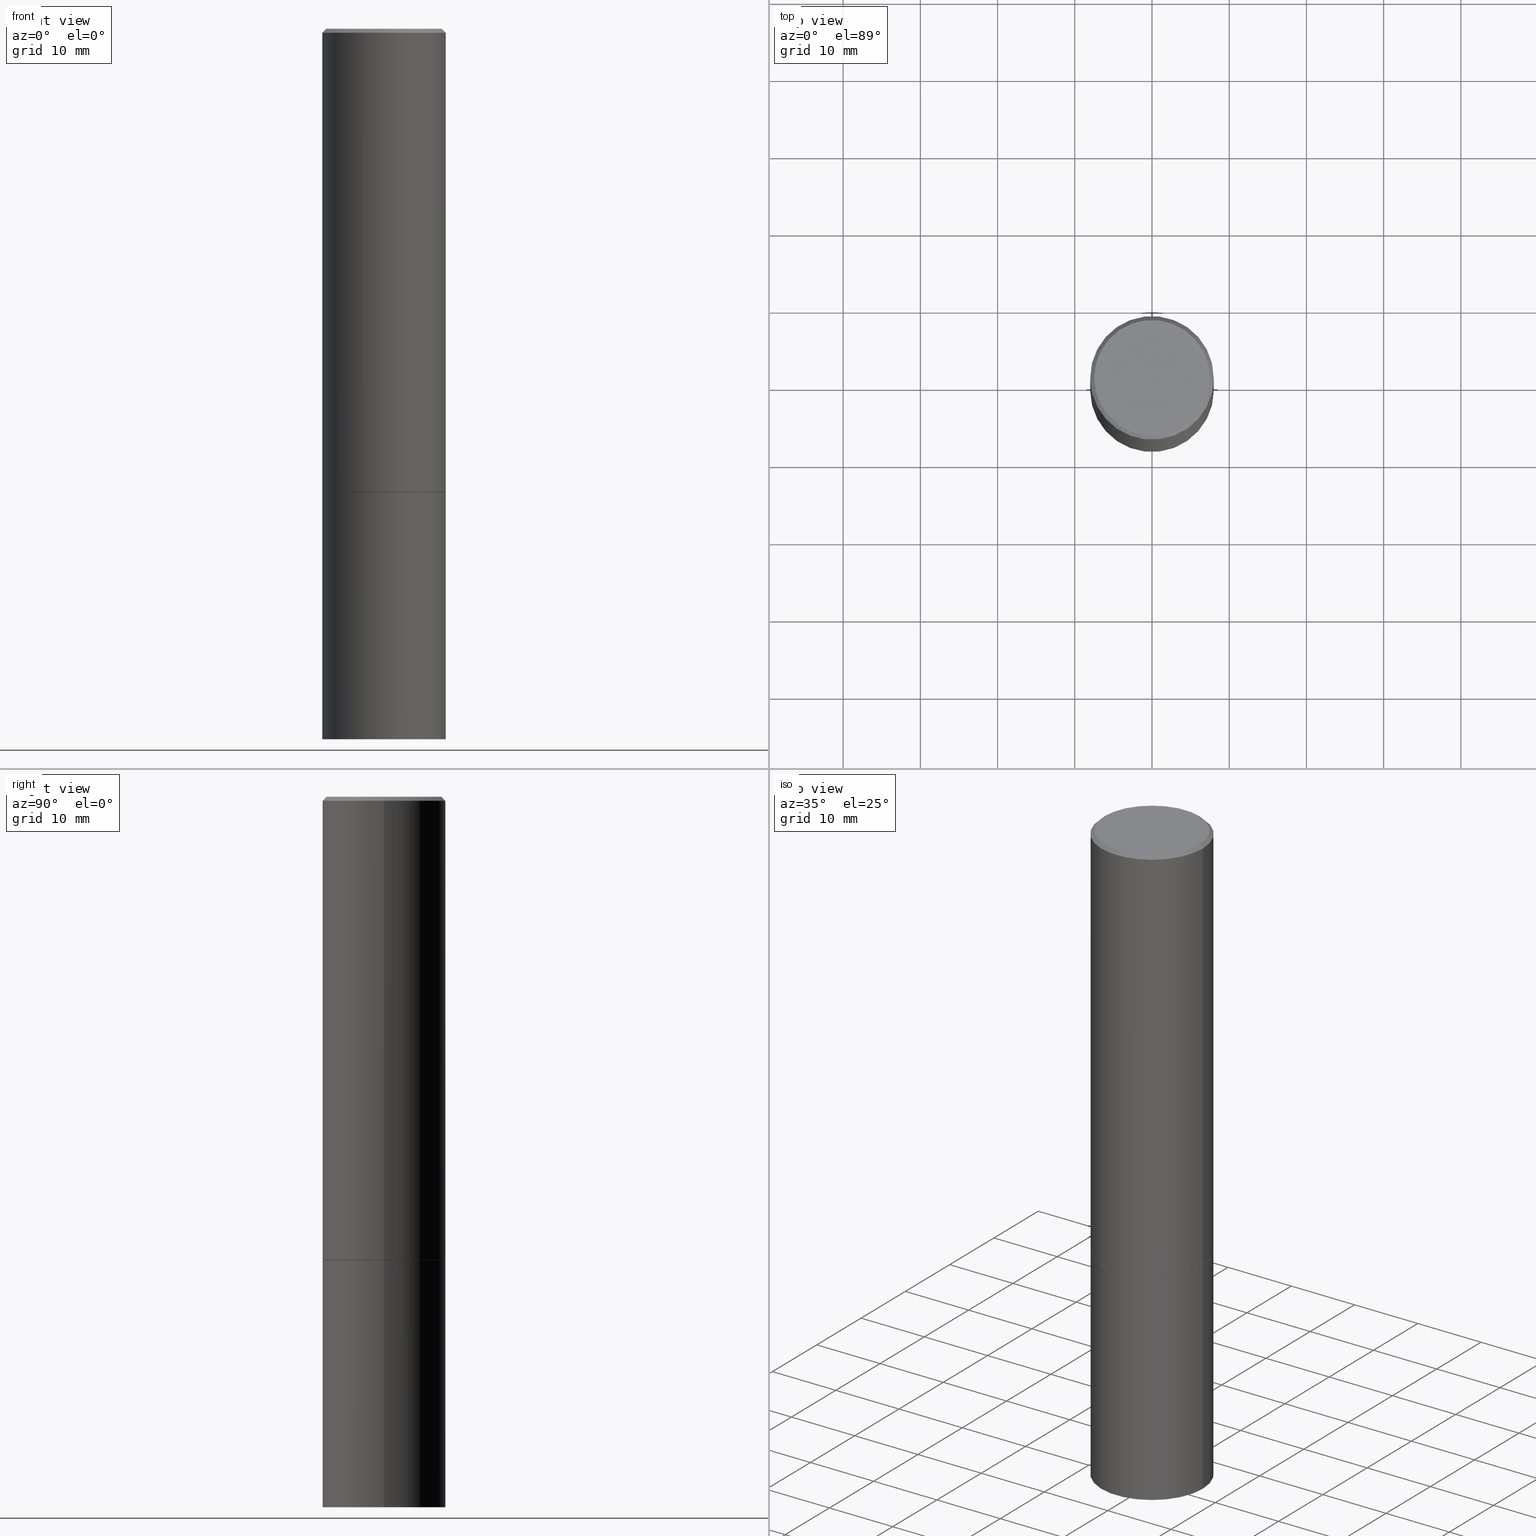
[diagram: canonical four-view strip — front | top / right | iso, engineering-drawing reading convention]
A machine part, canonical four-view strip (front | top / right | iso — engineering-drawing reading convention). The complete STEP part file that produces these views, byte-faithful:
ISO-10303-21;
HEADER;
FILE_DESCRIPTION (( 'STEP AP203' ),
    '1' );
FILE_NAME ('44558.STEP',
    '2024-02-28T06:54:32',
    ( '' ),
    ( '' ),
    'SwSTEP 2.0',
    'SolidWorks 2023',
    '' );
FILE_SCHEMA (( 'CONFIG_CONTROL_DESIGN' ));
ENDSEC;

DATA;
#1 = DIRECTION ( 'NONE',  ( 1.000000000000000000, 0.000000000000000000, 0.000000000000000000 ) ) ;
#2 = AXIS2_PLACEMENT_3D ( 'NONE', #260, #295, #288 ) ;
#3 = APPROVAL_PERSON_ORGANIZATION ( #310, #348, #341 ) ;
#4 = COORDINATED_UNIVERSAL_TIME_OFFSET ( 5, 0, .BEHIND. ) ;
#5 = PERSON_AND_ORGANIZATION ( #206, #213 ) ;
#6 = AXIS2_PLACEMENT_3D ( 'NONE', #166, #251, #305 ) ;
#7 = PRODUCT_DEFINITION ( 'UNKNOWN', '', #239, #257 ) ;
#8 = ORIENTED_EDGE ( 'NONE', *, *, #52, .F. ) ;
#9 = DIRECTION ( 'NONE',  ( 1.000000000000000000, -6.982962677686267499E-15, 4.876053491004739391E-29 ) ) ;
#10 = CYLINDRICAL_SURFACE ( 'NONE', #311, 0.3149499999999998967 ) ;
#11 = DIRECTION ( 'NONE',  ( 1.000000000000000000, -6.982962677686266711E-15, 0.000000000000000000 ) ) ;
#12 = AXIS2_PLACEMENT_3D ( 'NONE', #309, #62, #65 ) ;
#13 = VERTEX_POINT ( 'NONE', #100 ) ;
#14 = ADVANCED_FACE ( 'NONE', ( #76 ), #220, .F. ) ;
#15 = EDGE_LOOP ( 'NONE', ( #278, #319 ) ) ;
#16 = ORIENTED_EDGE ( 'NONE', *, *, #296, .T. ) ;
#17 = CARTESIAN_POINT ( 'NONE',  ( 4.890937612370290675E-31, -6.982962677686316261E-17, -0.02000000000000007327 ) ) ;
#18 = DIRECTION ( 'NONE',  ( 1.000000000000000000, -6.982962677686263555E-15, 0.000000000000000000 ) ) ;
#19 = FACE_OUTER_BOUND ( 'NONE', #365, .T. ) ;
#20 = EDGE_LOOP ( 'NONE', ( #242, #197 ) ) ;
#21 = VERTEX_POINT ( 'NONE', #267 ) ;
#22 = CARTESIAN_POINT ( 'NONE',  ( 0.3139500000000000624, -1.043987835127488191E-14, -2.362200000000000077 ) ) ;
#23 = CIRCLE ( 'NONE', #125, 0.3139500000000000624 ) ;
#24 = DIRECTION ( 'NONE',  ( 1.000000000000000000, -6.982962677686266711E-15, 4.876176775795936353E-29 ) ) ;
#25 = ORIENTED_EDGE ( 'NONE', *, *, #150, .F. ) ;
#26 = PERSON_AND_ORGANIZATION_ROLE ( 'design_owner' ) ;
#27 = EDGE_CURVE ( 'NONE', #186, #118, #210, .T. ) ;
#28 = MANIFOLD_SOLID_BREP ( 'Body-Move/Copy2[2]', #282 ) ;
#29 = CIRCLE ( 'NONE', #200, 0.3149500000000000077 ) ;
#30 = MANIFOLD_SOLID_BREP ( 'Body-Move/Copy2[1]', #340 ) ;
#31 = ORIENTED_EDGE ( 'NONE', *, *, #180, .F. ) ;
#32 = APPROVAL_DATE_TIME ( #66, #348 ) ;
#33 = CC_DESIGN_PERSON_AND_ORGANIZATION_ASSIGNMENT ( #5, #152, ( #239 ) ) ;
#34 = CC_DESIGN_APPROVAL ( #99, ( #239 ) ) ;
#35 = LINE ( 'NONE', #196, #98 ) ;
#36 = COORDINATED_UNIVERSAL_TIME_OFFSET ( 5, 0, .BEHIND. ) ;
#37 = ADVANCED_FACE ( 'NONE', ( #289 ), #63, .T. ) ;
#38 = VECTOR ( 'NONE', #80, 39.37007874015748143 ) ;
#39 = FACE_OUTER_BOUND ( 'NONE', #103, .T. ) ;
#40 = CARTESIAN_POINT ( 'NONE',  ( -1.043851414335219820E-46, 1.490343170380447200E-32, 4.268512490100411279E-18 ) ) ;
#41 = DIRECTION ( 'NONE',  ( -1.000000000000000000, 6.982962677686266711E-15, 0.000000000000000000 ) ) ;
#42 = LINE ( 'NONE', #299, #175 ) ;
#43 = ORIENTED_EDGE ( 'NONE', *, *, #52, .T. ) ;
#44 = DIRECTION ( 'NONE',  ( -2.445468806185136597E-29, 3.491481338843145583E-15, 1.000000000000000000 ) ) ;
#45 = EDGE_CURVE ( 'NONE', #118, #186, #301, .T. ) ;
#46 = DIRECTION ( 'NONE',  ( -2.445468806185136597E-29, 3.491481338843145583E-15, 1.000000000000000000 ) ) ;
#47 = AXIS2_PLACEMENT_3D ( 'NONE', #17, #140, #354 ) ;
#48 = ORIENTED_EDGE ( 'NONE', *, *, #217, .T. ) ;
#49 = DIRECTION ( 'NONE',  ( -2.445468806185136597E-29, 3.491481338843145583E-15, 1.000000000000000000 ) ) ;
#50 = ORIENTED_EDGE ( 'NONE', *, *, #296, .F. ) ;
#51 = CARTESIAN_POINT ( 'NONE',  ( 0.3149500000000000077, -1.044686131395256792E-14, -2.362199999999999633 ) ) ;
#52 = EDGE_CURVE ( 'NONE', #256, #132, #214, .T. ) ;
#53 = CARTESIAN_POINT ( 'NONE',  ( 5.776686413970529753E-29, -8.247577218615279626E-15, -2.362200000000000077 ) ) ;
#54 = ORIENTED_EDGE ( 'NONE', *, *, #169, .T. ) ;
#55 = CIRCLE ( 'NONE', #160, 0.3149500000000000077 ) ;
#56 = APPROVAL_PERSON_ORGANIZATION ( #147, #307, #229 ) ;
#57 = EDGE_LOOP ( 'NONE', ( #218, #143, #264, #48 ) ) ;
#58 = LINE ( 'NONE', #116, #255 ) ;
#59 = DATE_TIME_ROLE ( 'creation_date' ) ;
#60 = DIRECTION ( 'NONE',  ( 1.000000000000000000, -6.982962677686263555E-15, 0.000000000000000000 ) ) ;
#61 = AXIS2_PLACEMENT_3D ( 'NONE', #105, #155, #163 ) ;
#62 = DIRECTION ( 'NONE',  ( -2.445468806185136597E-29, 3.491481338843145583E-15, 1.000000000000000000 ) ) ;
#63 = CONICAL_SURFACE ( 'NONE', #47, 0.3149499999999997302, 0.7853981633974471688 ) ;
#64 = PRODUCT ( '44558', '44558', '', ( #225 ) ) ;
#65 = DIRECTION ( 'NONE',  ( 1.000000000000000000, -6.982962677686263555E-15, 0.000000000000000000 ) ) ;
#66 = DATE_AND_TIME ( #96, #364 ) ;
#67 = CARTESIAN_POINT ( 'NONE',  ( 2.199284095337347063E-15, 0.3149499999999917366, -2.362200000000000966 ) ) ;
#68 = ADVANCED_BREP_SHAPE_REPRESENTATION ( '44558', ( #30, #28, #194 ), #161 ) ;
#69 = VERTEX_POINT ( 'NONE', #158 ) ;
#70 = ADVANCED_FACE ( 'NONE', ( #39 ), #300, .T. ) ;
#71 = CARTESIAN_POINT ( 'NONE',  ( -1.043851414335219820E-46, 1.490343170380447200E-32, 4.268512490100411279E-18 ) ) ;
#72 = DIRECTION ( 'NONE',  ( -1.000000000000000000, 6.982962677686265922E-15, -4.876176775795935793E-29 ) ) ;
#73 = DIRECTION ( 'NONE',  ( -2.445468806185136597E-29, 3.491481338843145583E-15, 1.000000000000000000 ) ) ;
#74 = ORIENTED_EDGE ( 'NONE', *, *, #343, .T. ) ;
#75 = DIRECTION ( 'NONE',  ( 1.000000000000000000, -6.982962677686266711E-15, 0.000000000000000000 ) ) ;
#76 = FACE_OUTER_BOUND ( 'NONE', #261, .T. ) ;
#77 = CARTESIAN_POINT ( 'NONE',  ( 0.000000000000000000, 0.000000000000000000, 0.000000000000000000 ) ) ;
#78 = ORIENTED_EDGE ( 'NONE', *, *, #27, .T. ) ;
#79 = CC_DESIGN_PERSON_AND_ORGANIZATION_ASSIGNMENT ( #303, #26, ( #64 ) ) ;
#80 = DIRECTION ( 'NONE',  ( -0.7071067811864026886, 7.493145998869830357E-15, 0.7071067811866923458 ) ) ;
#81 = APPLICATION_CONTEXT ( 'configuration controlled 3d designs of mechanical parts and assemblies' ) ;
#82 = DIRECTION ( 'NONE',  ( 1.000000000000000000, -6.982962677686265133E-15, 0.000000000000000000 ) ) ;
#83 = DIRECTION ( 'NONE',  ( 0.7071067811865466846, -7.319954787623252890E-15, -0.7071067811865483499 ) ) ;
#84 = EDGE_CURVE ( 'NONE', #136, #13, #108, .T. ) ;
#85 = FACE_OUTER_BOUND ( 'NONE', #20, .T. ) ;
#86 = APPROVAL_STATUS ( 'not_yet_approved' ) ;
#87 = CARTESIAN_POINT ( 'NONE',  ( 5.774240945164344150E-29, -8.244085737276433464E-15, -2.361199999999999743 ) ) ;
#88 = CIRCLE ( 'NONE', #349, 0.3139500000000000624 ) ;
#89 = EDGE_CURVE ( 'NONE', #69, #13, #58, .T. ) ;
#90 = CARTESIAN_POINT ( 'NONE',  ( 0.3149499999999998967, -2.199284095337288688E-15, 1.535751875536929289E-29 ) ) ;
#91 = DATE_AND_TIME ( #209, #153 ) ;
#92 = PERSON_AND_ORGANIZATION_ROLE ( 'design_supplier' ) ;
#93 = ADVANCED_FACE ( 'NONE', ( #85 ), #203, .F. ) ;
#94 = VECTOR ( 'NONE', #195, 39.37007874015748143 ) ;
#95 = FACE_OUTER_BOUND ( 'NONE', #15, .T. ) ;
#96 = CALENDAR_DATE ( 2024, 28, 2 ) ;
#97 = ORIENTED_EDGE ( 'NONE', *, *, #235, .T. ) ;
#98 = VECTOR ( 'NONE', #297, 39.37007874015748143 ) ;
#99 = APPROVAL ( #281, 'UNSPECIFIED' ) ;
#100 = CARTESIAN_POINT ( 'NONE',  ( -0.3149500000000000077, -8.209006967676139823E-15, -2.362199999999999633 ) ) ;
#101 = CARTESIAN_POINT ( 'NONE',  ( 0.000000000000000000, 0.000000000000000000, 0.000000000000000000 ) ) ;
#102 = CC_DESIGN_PERSON_AND_ORGANIZATION_ASSIGNMENT ( #151, #92, ( #239 ) ) ;
#103 = EDGE_LOOP ( 'NONE', ( #171, #258 ) ) ;
#104 = CARTESIAN_POINT ( 'NONE',  ( 5.776686413970529753E-29, -8.247577218615279626E-15, -2.362200000000000077 ) ) ;
#105 = CARTESIAN_POINT ( 'NONE',  ( 2.059624841783562091E-15, 0.2949499999999997124, -1.027678164646734579E-15 ) ) ;
#106 = EDGE_CURVE ( 'NONE', #186, #21, #298, .T. ) ;
#107 = APPLICATION_CONTEXT ( 'configuration controlled 3d designs of mechanical parts and assemblies' ) ;
#108 = CIRCLE ( 'NONE', #236, 0.3149500000000000077 ) ;
#109 = DIRECTION ( 'NONE',  ( 1.000000000000000000, -6.982962677686267499E-15, 4.876053491004739391E-29 ) ) ;
#110 = DIRECTION ( 'NONE',  ( -2.445468806185136597E-29, 3.491481338843145583E-15, 1.000000000000000000 ) ) ;
#111 = DIRECTION ( 'NONE',  ( 1.000000000000000000, -6.982962677686266711E-15, 4.876176775795936353E-29 ) ) ;
#112 = EDGE_LOOP ( 'NONE', ( #31, #97, #273, #352 ) ) ;
#113 = ORIENTED_EDGE ( 'NONE', *, *, #89, .F. ) ;
#114 = EDGE_CURVE ( 'NONE', #224, #21, #123, .T. ) ;
#115 = CARTESIAN_POINT ( 'NONE',  ( -0.2949499999999997124, 2.094539655171993740E-15, 4.268512490085885145E-18 ) ) ;
#116 = CARTESIAN_POINT ( 'NONE',  ( -0.3149500000000000077, 2.237854346276435590E-15, -1.549218606675782676E-29 ) ) ;
#117 = ORIENTED_EDGE ( 'NONE', *, *, #114, .F. ) ;
#118 = VERTEX_POINT ( 'NONE', #115 ) ;
#119 = PERSON_AND_ORGANIZATION_ROLE ( 'creator' ) ;
#120 = ORIENTED_EDGE ( 'NONE', *, *, #180, .T. ) ;
#121 = CC_DESIGN_DATE_AND_TIME_ASSIGNMENT ( #306, #59, ( #7 ) ) ;
#122 = CARTESIAN_POINT ( 'NONE',  ( 0.000000000000000000, 0.000000000000000000, 0.000000000000000000 ) ) ;
#123 = LINE ( 'NONE', #90, #94 ) ;
#124 = PERSON_AND_ORGANIZATION_ROLE ( 'classification_officer' ) ;
#125 = AXIS2_PLACEMENT_3D ( 'NONE', #192, #49, #249 ) ;
#126 = APPROVAL_STATUS ( 'not_yet_approved' ) ;
#127 = EDGE_CURVE ( 'NONE', #183, #136, #35, .T. ) ;
#128 = CIRCLE ( 'NONE', #231, 0.3149500000000000077 ) ;
#129 = LOCAL_TIME ( 1, 54, 32.00000000000000000, #227 ) ;
#130 = COORDINATED_UNIVERSAL_TIME_OFFSET ( 5, 0, .BEHIND. ) ;
#131 = ORIENTED_EDGE ( 'NONE', *, *, #27, .F. ) ;
#132 = VERTEX_POINT ( 'NONE', #326 ) ;
#133 = DIRECTION ( 'NONE',  ( 2.438088387897960049E-29, -3.491481338843145188E-15, -1.000000000000000000 ) ) ;
#134 = CARTESIAN_POINT ( 'NONE',  ( 0.3149500000000000077, -1.044336983261372333E-14, -2.361199999999999743 ) ) ;
#135 = CONICAL_SURFACE ( 'NONE', #204, 0.3139500000000000624, 0.7853981633972434429 ) ;
#136 = VERTEX_POINT ( 'NONE', #51 ) ;
#137 = ADVANCED_FACE ( 'NONE', ( #359 ), #164, .T. ) ;
#138 = ORIENTED_EDGE ( 'NONE', *, *, #84, .F. ) ;
#139 = APPLICATION_PROTOCOL_DEFINITION ( 'international standard', 'config_control_design', 1994, #107 ) ;
#140 = DIRECTION ( 'NONE',  ( 2.445468806185136597E-29, -3.491481338843145583E-15, -1.000000000000000000 ) ) ;
#141 = DIRECTION ( 'NONE',  ( 2.445468806185136597E-29, -3.491481338843145583E-15, -1.000000000000000000 ) ) ;
#142 = DIRECTION ( 'NONE',  ( -2.445468806185136597E-29, 3.491481338843145583E-15, 1.000000000000000000 ) ) ;
#143 = ORIENTED_EDGE ( 'NONE', *, *, #45, .F. ) ;
#144 = CIRCLE ( 'NONE', #331, 0.3149499999999997302 ) ;
#145 =( CONVERSION_BASED_UNIT ( 'INCH', #188 ) LENGTH_UNIT ( ) NAMED_UNIT ( #232 ) );
#146 = APPLICATION_PROTOCOL_DEFINITION ( 'international standard', 'config_control_design', 1994, #81 ) ;
#147 = PERSON_AND_ORGANIZATION ( #206, #213 ) ;
#148 = PERSON_AND_ORGANIZATION ( #206, #213 ) ;
#149 = AXIS2_PLACEMENT_3D ( 'NONE', #353, #141, #41 ) ;
#150 = EDGE_CURVE ( 'NONE', #118, #132, #216, .T. ) ;
#151 = PERSON_AND_ORGANIZATION ( #206, #213 ) ;
#152 = PERSON_AND_ORGANIZATION_ROLE ( 'creator' ) ;
#153 = LOCAL_TIME ( 1, 54, 32.00000000000000000, #130 ) ;
#154 = ADVANCED_FACE ( 'NONE', ( #19 ), #135, .T. ) ;
#155 = DIRECTION ( 'NONE',  ( 2.438088387897960049E-29, -3.491481338843145188E-15, -1.000000000000000000 ) ) ;
#156 = ORIENTED_EDGE ( 'NONE', *, *, #240, .T. ) ;
#157 = FACE_OUTER_BOUND ( 'NONE', #57, .T. ) ;
#158 = CARTESIAN_POINT ( 'NONE',  ( -0.3149500000000000077, -8.209006967676139823E-15, -3.621999999999999886 ) ) ;
#159 = DIRECTION ( 'NONE',  ( 1.000000000000000000, -6.982962677686265133E-15, 0.000000000000000000 ) ) ;
#160 = AXIS2_PLACEMENT_3D ( 'NONE', #350, #44, #18 ) ;
#161 =( GEOMETRIC_REPRESENTATION_CONTEXT ( 3 ) GLOBAL_UNCERTAINTY_ASSIGNED_CONTEXT ( ( #178 ) ) GLOBAL_UNIT_ASSIGNED_CONTEXT ( ( #145, #316, #292 ) ) REPRESENTATION_CONTEXT ( 'NONE', 'WORKASPACE' ) );
#162 = ORIENTED_EDGE ( 'NONE', *, *, #208, .F. ) ;
#163 = DIRECTION ( 'NONE',  ( -1.000000000000000000, 6.982962677686265922E-15, -4.876176775795935793E-29 ) ) ;
#164 = CYLINDRICAL_SURFACE ( 'NONE', #356, 0.3149500000000000077 ) ;
#165 = EDGE_LOOP ( 'NONE', ( #276, #347, #138, #363 ) ) ;
#166 = CARTESIAN_POINT ( 'NONE',  ( 5.776686413970529753E-29, -8.247577218615278049E-15, -2.362199999999999633 ) ) ;
#167 = CARTESIAN_POINT ( 'NONE',  ( 0.3149500000000000077, -1.484542950462716186E-14, -3.621999999999999886 ) ) ;
#168 = AXIS2_PLACEMENT_3D ( 'NONE', #40, #287, #9 ) ;
#169 = EDGE_CURVE ( 'NONE', #332, #302, #88, .T. ) ;
#170 = ORIENTED_EDGE ( 'NONE', *, *, #208, .T. ) ;
#171 = ORIENTED_EDGE ( 'NONE', *, *, #266, .F. ) ;
#172 = CARTESIAN_POINT ( 'NONE',  ( 5.776686413970529753E-29, -8.247577218615278049E-15, -2.362199999999999633 ) ) ;
#173 = CARTESIAN_POINT ( 'NONE',  ( -0.3149500000000000077, -1.919103335750211213E-15, -2.361199999999999743 ) ) ;
#174 = ADVANCED_FACE ( 'NONE', ( #358 ), #243, .T. ) ;
#175 = VECTOR ( 'NONE', #263, 39.37007874015748143 ) ;
#176 = PERSON_AND_ORGANIZATION ( #206, #213 ) ;
#177 = CYLINDRICAL_SURFACE ( 'NONE', #279, 0.3149499999999998967 ) ;
#178 = UNCERTAINTY_MEASURE_WITH_UNIT (LENGTH_MEASURE( 1.000000000000000082E-05 ), #145, 'distance_accuracy_value', 'NONE');
#179 = CIRCLE ( 'NONE', #12, 0.3149500000000000077 ) ;
#180 = EDGE_CURVE ( 'NONE', #302, #256, #271, .T. ) ;
#181 = APPROVAL_DATE_TIME ( #207, #99 ) ;
#182 = CC_DESIGN_PERSON_AND_ORGANIZATION_ASSIGNMENT ( #234, #124, ( #294 ) ) ;
#183 = VERTEX_POINT ( 'NONE', #167 ) ;
#184 = VECTOR ( 'NONE', #324, 39.37007874015748143 ) ;
#185 = CC_DESIGN_SECURITY_CLASSIFICATION ( #294, ( #239 ) ) ;
#186 = VERTEX_POINT ( 'NONE', #199 ) ;
#187 = CARTESIAN_POINT ( 'NONE',  ( -0.3149499999999998967, 2.237854346276434801E-15, -1.549218606675782116E-29 ) ) ;
#188 = LENGTH_MEASURE_WITH_UNIT ( LENGTH_MEASURE( 0.02539999999999999897 ), #325 );
#189 = CARTESIAN_POINT ( 'NONE',  ( 4.890937612370290675E-31, -6.982962677686316261E-17, -0.02000000000000007327 ) ) ;
#190 = EDGE_LOOP ( 'NONE', ( #131, #321, #170, #25 ) ) ;
#191 = DIRECTION ( 'NONE',  ( 1.000000000000000000, -6.982962677686265922E-15, 4.876176775795935232E-29 ) ) ;
#192 = CARTESIAN_POINT ( 'NONE',  ( 5.776686413970529753E-29, -8.247577218615279626E-15, -2.362200000000000077 ) ) ;
#193 = AXIS2_PLACEMENT_3D ( 'NONE', #290, #46, #75 ) ;
#194 = AXIS2_PLACEMENT_3D ( 'NONE', #274, #202, #1 ) ;
#195 = DIRECTION ( 'NONE',  ( -2.445468806185136877E-29, 3.491481338843145188E-15, 1.000000000000000000 ) ) ;
#196 = CARTESIAN_POINT ( 'NONE',  ( 0.3149500000000000077, -2.199284095337289871E-15, 1.535751875536930130E-29 ) ) ;
#197 = ORIENTED_EDGE ( 'NONE', *, *, #235, .F. ) ;
#198 = DIRECTION ( 'NONE',  ( -2.445468806185136877E-29, 3.491481338843145188E-15, 1.000000000000000000 ) ) ;
#199 = CARTESIAN_POINT ( 'NONE',  ( 0.2949499999999997124, -2.127023677808858103E-15, 4.268512490115050658E-18 ) ) ;
#200 = AXIS2_PLACEMENT_3D ( 'NONE', #87, #361, #362 ) ;
#201 = CONICAL_SURFACE ( 'NONE', #149, 0.3149499999999997302, 0.7853981633974471688 ) ;
#202 = DIRECTION ( 'NONE',  ( 0.000000000000000000, 0.000000000000000000, 1.000000000000000000 ) ) ;
#203 = PLANE ( 'NONE',  #6 ) ;
#204 = AXIS2_PLACEMENT_3D ( 'NONE', #53, #265, #328 ) ;
#205 = DIRECTION ( 'NONE',  ( 1.000000000000000000, -6.982962677686265922E-15, 4.876176775795935232E-29 ) ) ;
#206 = PERSON ( 'UNSPECIFIED', 'UNSPECIFIED', 'UNSPECIFIED', ('UNSPECIFIED'), ('UNSPECIFIED'), ('UNSPECIFIED') ) ;
#207 = DATE_AND_TIME ( #284, #323 ) ;
#208 = EDGE_CURVE ( 'NONE', #21, #132, #286, .T. ) ;
#209 = CALENDAR_DATE ( 2024, 28, 2 ) ;
#210 = CIRCLE ( 'NONE', #168, 0.2949499999999997124 ) ;
#211 = PLANE ( 'NONE',  #314 ) ;
#212 = EDGE_CURVE ( 'NONE', #332, #224, #42, .T. ) ;
#213 = ORGANIZATION ( 'UNSPECIFIED', 'UNSPECIFIED', '' ) ;
#214 = LINE ( 'NONE', #187, #184 ) ;
#215 = CARTESIAN_POINT ( 'NONE',  ( 5.776686413970529753E-29, -8.247577218615279626E-15, -2.362200000000000077 ) ) ;
#216 = LINE ( 'NONE', #246, #293 ) ;
#217 = EDGE_CURVE ( 'NONE', #132, #21, #144, .T. ) ;
#218 = ORIENTED_EDGE ( 'NONE', *, *, #106, .F. ) ;
#219 = AXIS2_PLACEMENT_3D ( 'NONE', #71, #238, #109 ) ;
#220 = PLANE ( 'NONE',  #61 ) ;
#221 = FACE_OUTER_BOUND ( 'NONE', #317, .T. ) ;
#222 = CARTESIAN_POINT ( 'NONE',  ( -0.3139500000000000624, -6.016828299696443861E-15, -2.362200000000000077 ) ) ;
#223 = PRODUCT_RELATED_PRODUCT_CATEGORY ( 'detail', '', ( #64 ) ) ;
#224 = VERTEX_POINT ( 'NONE', #134 ) ;
#225 = MECHANICAL_CONTEXT ( 'NONE', #107, 'mechanical' ) ;
#226 = DIRECTION ( 'NONE',  ( -2.445468806185136597E-29, 3.491481338843145583E-15, 1.000000000000000000 ) ) ;
#227 = COORDINATED_UNIVERSAL_TIME_OFFSET ( 5, 0, .BEHIND. ) ;
#228 = ORIENTED_EDGE ( 'NONE', *, *, #212, .F. ) ;
#229 = APPROVAL_ROLE ( '' ) ;
#230 = DIRECTION ( 'NONE',  ( -2.445468806185136597E-29, 3.491481338843145583E-15, 1.000000000000000000 ) ) ;
#231 = AXIS2_PLACEMENT_3D ( 'NONE', #342, #230, #60 ) ;
#232 = DIMENSIONAL_EXPONENTS ( 1.000000000000000000, 0.000000000000000000, 0.000000000000000000, 0.000000000000000000, 0.000000000000000000, 0.000000000000000000, 0.000000000000000000 ) ;
#233 = EDGE_CURVE ( 'NONE', #13, #136, #262, .T. ) ;
#234 = PERSON_AND_ORGANIZATION ( #206, #213 ) ;
#235 = EDGE_CURVE ( 'NONE', #302, #332, #23, .T. ) ;
#236 = AXIS2_PLACEMENT_3D ( 'NONE', #172, #226, #330 ) ;
#237 = EDGE_LOOP ( 'NONE', ( #113, #74, #241, #315 ) ) ;
#238 = DIRECTION ( 'NONE',  ( -2.445468806185136597E-29, 3.491481338843145583E-15, 1.000000000000000000 ) ) ;
#239 = PRODUCT_DEFINITION_FORMATION_WITH_SPECIFIED_SOURCE ( 'ANY', '', #64, .NOT_KNOWN. ) ;
#240 = EDGE_CURVE ( 'NONE', #256, #224, #29, .T. ) ;
#241 = ORIENTED_EDGE ( 'NONE', *, *, #127, .T. ) ;
#242 = ORIENTED_EDGE ( 'NONE', *, *, #169, .F. ) ;
#243 = CYLINDRICAL_SURFACE ( 'NONE', #345, 0.3149500000000000077 ) ;
#244 = EDGE_LOOP ( 'NONE', ( #16, #43, #162, #117 ) ) ;
#245 = COORDINATED_UNIVERSAL_TIME_OFFSET ( 5, 0, .BEHIND. ) ;
#246 = CARTESIAN_POINT ( 'NONE',  ( -0.3149499999999997302, 2.129454468560424601E-15, -0.02000000000000007327 ) ) ;
#247 = ORIENTED_EDGE ( 'NONE', *, *, #114, .T. ) ;
#248 = CALENDAR_DATE ( 2024, 28, 2 ) ;
#249 = DIRECTION ( 'NONE',  ( 1.000000000000000000, -6.982962677686265133E-15, 0.000000000000000000 ) ) ;
#250 = DIRECTION ( 'NONE',  ( -1.000000000000000000, 6.982962677686265922E-15, -4.876176775795935793E-29 ) ) ;
#251 = DIRECTION ( 'NONE',  ( -2.438088387897960049E-29, 3.491481338843145188E-15, 1.000000000000000000 ) ) ;
#252 = AXIS2_PLACEMENT_3D ( 'NONE', #215, #110, #159 ) ;
#253 = APPROVAL_PERSON_ORGANIZATION ( #176, #99, #312 ) ;
#254 = DATE_TIME_ROLE ( 'classification_date' ) ;
#255 = VECTOR ( 'NONE', #198, 39.37007874015748143 ) ;
#256 = VERTEX_POINT ( 'NONE', #173 ) ;
#257 = DESIGN_CONTEXT ( 'detailed design', #81, 'design' ) ;
#258 = ORIENTED_EDGE ( 'NONE', *, *, #343, .F. ) ;
#259 = CC_DESIGN_PERSON_AND_ORGANIZATION_ASSIGNMENT ( #148, #119, ( #7 ) ) ;
#260 = CARTESIAN_POINT ( 'NONE',  ( 4.890937612370290675E-31, -6.982962677686316261E-17, -0.02000000000000007327 ) ) ;
#261 = EDGE_LOOP ( 'NONE', ( #338, #78 ) ) ;
#262 = CIRCLE ( 'NONE', #193, 0.3149500000000000077 ) ;
#263 = DIRECTION ( 'NONE',  ( 0.7071067811864026886, -2.468850131080739687E-15, 0.7071067811866923458 ) ) ;
#264 = ORIENTED_EDGE ( 'NONE', *, *, #150, .T. ) ;
#265 = DIRECTION ( 'NONE',  ( -2.445468806185136597E-29, 3.491481338843145583E-15, 1.000000000000000000 ) ) ;
#266 = EDGE_CURVE ( 'NONE', #183, #69, #128, .T. ) ;
#267 = CARTESIAN_POINT ( 'NONE',  ( 0.3149499999999997302, -2.230543471175005478E-15, -0.02000000000000007327 ) ) ;
#268 = DIRECTION ( 'NONE',  ( -2.445468806185136597E-29, 3.491481338843145583E-15, 1.000000000000000000 ) ) ;
#269 = DIRECTION ( 'NONE',  ( -2.445468806185136597E-29, 3.491481338843145583E-15, 1.000000000000000000 ) ) ;
#270 = CARTESIAN_POINT ( 'NONE',  ( 2.199284095337378223E-15, 0.3149499999999873512, -3.622000000000000774 ) ) ;
#271 = LINE ( 'NONE', #222, #38 ) ;
#272 = AXIS2_PLACEMENT_3D ( 'NONE', #270, #335, #250 ) ;
#273 = ORIENTED_EDGE ( 'NONE', *, *, #212, .T. ) ;
#274 = CARTESIAN_POINT ( 'NONE',  ( 0.000000000000000000, 0.000000000000000000, 0.000000000000000000 ) ) ;
#275 = ADVANCED_FACE ( 'NONE', ( #366 ), #177, .T. ) ;
#276 = ORIENTED_EDGE ( 'NONE', *, *, #266, .T. ) ;
#277 = APPROVAL_DATE_TIME ( #334, #307 ) ;
#278 = ORIENTED_EDGE ( 'NONE', *, *, #84, .T. ) ;
#279 = AXIS2_PLACEMENT_3D ( 'NONE', #122, #339, #205 ) ;
#280 = LOCAL_TIME ( 1, 54, 32.00000000000000000, #245 ) ;
#281 = APPROVAL_STATUS ( 'not_yet_approved' ) ;
#282 = CLOSED_SHELL ( 'NONE', ( #154, #275, #37, #360, #337, #329, #93, #14 ) ) ;
#283 = CC_DESIGN_APPROVAL ( #348, ( #294 ) ) ;
#284 = CALENDAR_DATE ( 2024, 28, 2 ) ;
#285 = SECURITY_CLASSIFICATION_LEVEL ( 'unclassified' ) ;
#286 = CIRCLE ( 'NONE', #2, 0.3149499999999997302 ) ;
#287 = DIRECTION ( 'NONE',  ( -2.445468806185136597E-29, 3.491481338843145583E-15, 1.000000000000000000 ) ) ;
#288 = DIRECTION ( 'NONE',  ( 1.000000000000000000, -6.982962677686266711E-15, 0.000000000000000000 ) ) ;
#289 = FACE_OUTER_BOUND ( 'NONE', #190, .T. ) ;
#290 = CARTESIAN_POINT ( 'NONE',  ( 5.776686413970529753E-29, -8.247577218615278049E-15, -2.362199999999999633 ) ) ;
#291 = ORIENTED_EDGE ( 'NONE', *, *, #217, .F. ) ;
#292 =( NAMED_UNIT ( * ) SI_UNIT ( $, .STERADIAN. ) SOLID_ANGLE_UNIT ( ) );
#293 = VECTOR ( 'NONE', #318, 39.37007874015748143 ) ;
#294 = SECURITY_CLASSIFICATION ( '', '', #285 ) ;
#295 = DIRECTION ( 'NONE',  ( -2.445468806185136597E-29, 3.491481338843145583E-15, 1.000000000000000000 ) ) ;
#296 = EDGE_CURVE ( 'NONE', #224, #256, #179, .T. ) ;
#297 = DIRECTION ( 'NONE',  ( -2.445468806185136877E-29, 3.491481338843145188E-15, 1.000000000000000000 ) ) ;
#298 = LINE ( 'NONE', #333, #308 ) ;
#299 = CARTESIAN_POINT ( 'NONE',  ( 0.3139500000000000624, -1.043987835127488191E-14, -2.362200000000000077 ) ) ;
#300 = PLANE ( 'NONE',  #272 ) ;
#301 = CIRCLE ( 'NONE', #219, 0.2949499999999997124 ) ;
#302 = VERTEX_POINT ( 'NONE', #313 ) ;
#303 = PERSON_AND_ORGANIZATION ( #206, #213 ) ;
#304 = ADVANCED_FACE ( 'NONE', ( #95 ), #211, .F. ) ;
#305 = DIRECTION ( 'NONE',  ( 1.000000000000000000, -6.982962677686265922E-15, 4.876176775795935793E-29 ) ) ;
#306 = DATE_AND_TIME ( #336, #129 ) ;
#307 = APPROVAL ( #86, 'UNSPECIFIED' ) ;
#308 = VECTOR ( 'NONE', #83, 39.37007874015748143 ) ;
#309 = CARTESIAN_POINT ( 'NONE',  ( 5.774240945164344150E-29, -8.244085737276433464E-15, -2.361199999999999743 ) ) ;
#310 = PERSON_AND_ORGANIZATION ( #206, #213 ) ;
#311 = AXIS2_PLACEMENT_3D ( 'NONE', #77, #268, #191 ) ;
#312 = APPROVAL_ROLE ( '' ) ;
#313 = CARTESIAN_POINT ( 'NONE',  ( -0.3139500000000000624, -6.011529845348221459E-15, -2.362200000000000077 ) ) ;
#314 = AXIS2_PLACEMENT_3D ( 'NONE', #67, #133, #72 ) ;
#315 = ORIENTED_EDGE ( 'NONE', *, *, #233, .F. ) ;
#316 =( NAMED_UNIT ( * ) PLANE_ANGLE_UNIT ( ) SI_UNIT ( $, .RADIAN. ) );
#317 = EDGE_LOOP ( 'NONE', ( #8, #156, #247, #291 ) ) ;
#318 = DIRECTION ( 'NONE',  ( -0.7071067811865466846, 2.468850131082247989E-15, -0.7071067811865483499 ) ) ;
#319 = ORIENTED_EDGE ( 'NONE', *, *, #233, .T. ) ;
#320 = DIRECTION ( 'NONE',  ( -2.445468806185136597E-29, 3.491481338843145583E-15, 1.000000000000000000 ) ) ;
#321 = ORIENTED_EDGE ( 'NONE', *, *, #106, .T. ) ;
#322 = CONICAL_SURFACE ( 'NONE', #252, 0.3139500000000000624, 0.7853981633972434429 ) ;
#323 = LOCAL_TIME ( 1, 54, 32.00000000000000000, #4 ) ;
#324 = DIRECTION ( 'NONE',  ( -2.445468806185136877E-29, 3.491481338843145188E-15, 1.000000000000000000 ) ) ;
#325 =( LENGTH_UNIT ( ) NAMED_UNIT ( * ) SI_UNIT ( $, .METRE. ) );
#326 = CARTESIAN_POINT ( 'NONE',  ( -0.3149499999999997302, 2.129454468560424601E-15, -0.02000000000000007327 ) ) ;
#327 = PRODUCT_DEFINITION_SHAPE ( 'NONE', 'NONE',  #7 ) ;
#328 = DIRECTION ( 'NONE',  ( 1.000000000000000000, -6.982962677686265133E-15, 0.000000000000000000 ) ) ;
#329 = ADVANCED_FACE ( 'NONE', ( #355 ), #322, .T. ) ;
#330 = DIRECTION ( 'NONE',  ( 1.000000000000000000, -6.982962677686266711E-15, 0.000000000000000000 ) ) ;
#331 = AXIS2_PLACEMENT_3D ( 'NONE', #189, #320, #11 ) ;
#332 = VERTEX_POINT ( 'NONE', #22 ) ;
#333 = CARTESIAN_POINT ( 'NONE',  ( 0.3149499999999997302, -2.230543471175005478E-15, -0.02000000000000007327 ) ) ;
#334 = DATE_AND_TIME ( #248, #280 ) ;
#335 = DIRECTION ( 'NONE',  ( 2.438088387897960049E-29, -3.491481338843145188E-15, -1.000000000000000000 ) ) ;
#336 = CALENDAR_DATE ( 2024, 28, 2 ) ;
#337 = ADVANCED_FACE ( 'NONE', ( #221 ), #10, .T. ) ;
#338 = ORIENTED_EDGE ( 'NONE', *, *, #45, .T. ) ;
#339 = DIRECTION ( 'NONE',  ( -2.445468806185136597E-29, 3.491481338843145583E-15, 1.000000000000000000 ) ) ;
#340 = CLOSED_SHELL ( 'NONE', ( #137, #70, #304, #174 ) ) ;
#341 = APPROVAL_ROLE ( '' ) ;
#342 = CARTESIAN_POINT ( 'NONE',  ( 8.857488016002564476E-29, -1.264614540928987199E-14, -3.621999999999999886 ) ) ;
#343 = EDGE_CURVE ( 'NONE', #69, #183, #55, .T. ) ;
#344 = SHAPE_DEFINITION_REPRESENTATION ( #327, #68 ) ;
#345 = AXIS2_PLACEMENT_3D ( 'NONE', #101, #73, #111 ) ;
#346 = CC_DESIGN_DATE_AND_TIME_ASSIGNMENT ( #91, #254, ( #294 ) ) ;
#347 = ORIENTED_EDGE ( 'NONE', *, *, #89, .T. ) ;
#348 = APPROVAL ( #126, 'UNSPECIFIED' ) ;
#349 = AXIS2_PLACEMENT_3D ( 'NONE', #104, #142, #82 ) ;
#350 = CARTESIAN_POINT ( 'NONE',  ( 8.857488016002564476E-29, -1.264614540928987199E-14, -3.621999999999999886 ) ) ;
#351 = CARTESIAN_POINT ( 'NONE',  ( 0.000000000000000000, 0.000000000000000000, 0.000000000000000000 ) ) ;
#352 = ORIENTED_EDGE ( 'NONE', *, *, #240, .F. ) ;
#353 = CARTESIAN_POINT ( 'NONE',  ( 4.890937612370290675E-31, -6.982962677686316261E-17, -0.02000000000000007327 ) ) ;
#354 = DIRECTION ( 'NONE',  ( -1.000000000000000000, 6.982962677686266711E-15, 0.000000000000000000 ) ) ;
#355 = FACE_OUTER_BOUND ( 'NONE', #112, .T. ) ;
#356 = AXIS2_PLACEMENT_3D ( 'NONE', #351, #269, #24 ) ;
#357 = CC_DESIGN_APPROVAL ( #307, ( #7 ) ) ;
#358 = FACE_OUTER_BOUND ( 'NONE', #237, .T. ) ;
#359 = FACE_OUTER_BOUND ( 'NONE', #165, .T. ) ;
#360 = ADVANCED_FACE ( 'NONE', ( #157 ), #201, .T. ) ;
#361 = DIRECTION ( 'NONE',  ( -2.445468806185136597E-29, 3.491481338843145583E-15, 1.000000000000000000 ) ) ;
#362 = DIRECTION ( 'NONE',  ( 1.000000000000000000, -6.982962677686263555E-15, 0.000000000000000000 ) ) ;
#363 = ORIENTED_EDGE ( 'NONE', *, *, #127, .F. ) ;
#364 = LOCAL_TIME ( 1, 54, 32.00000000000000000, #36 ) ;
#365 = EDGE_LOOP ( 'NONE', ( #54, #120, #50, #228 ) ) ;
#366 = FACE_OUTER_BOUND ( 'NONE', #244, .T. ) ;
ENDSEC;
END-ISO-10303-21;
